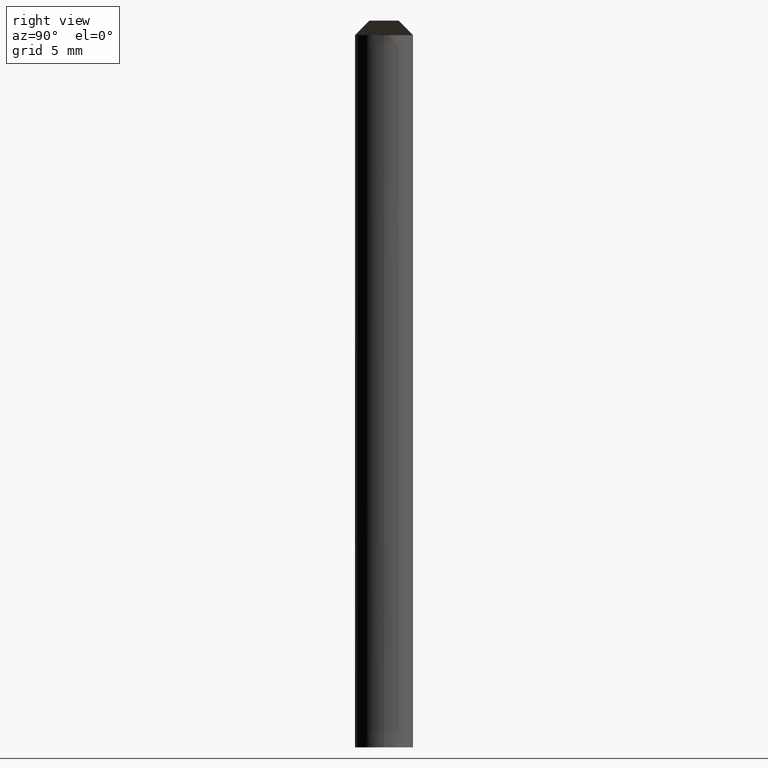
[diagram: clean part render]
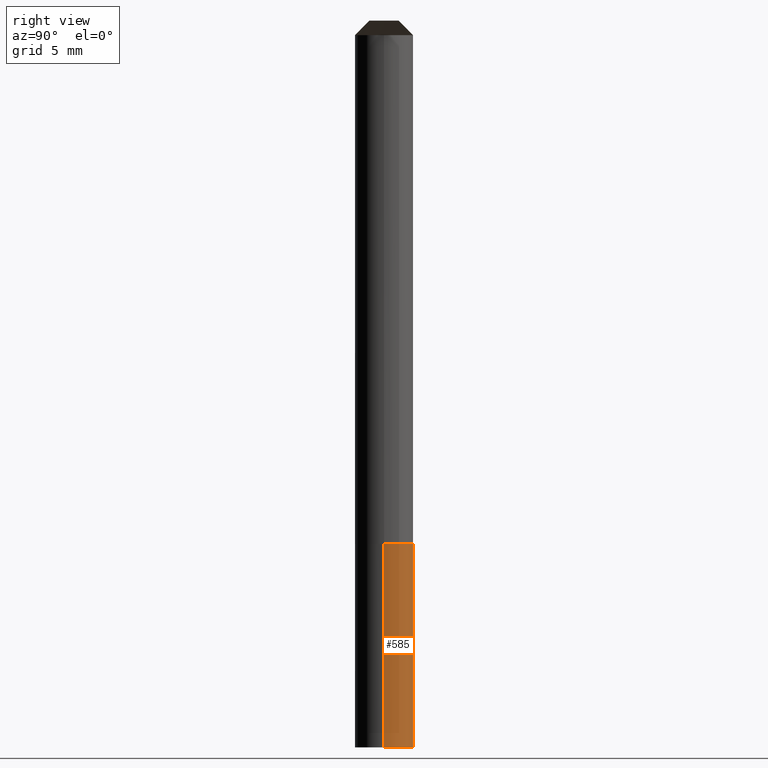
[diagram: same view with one face highlighted and labeled with its STEP entity id]
A machine part, right view. The second image highlights one B-rep face of the part: STEP entity #585.
In plain terms, the highlighted face is a freeform B-spline surface patch.
Its self-contained STEP definition (entity closure, byte-faithful):
#335=CARTESIAN_POINT('',(0.0,2.0,-14.0));
#513=CARTESIAN_POINT('',(2.0,0.0,-14.0));
#514=CARTESIAN_POINT('',(2.0,2.0,-14.0));
#515=CARTESIAN_POINT('',(-2.0,2.0,-14.0));
#516=CARTESIAN_POINT('',(-2.0,0.0,-14.0));
#517=CARTESIAN_POINT('',(2.0,0.0,0.0));
#518=CARTESIAN_POINT('',(2.0,2.0,0.0));
#519=CARTESIAN_POINT('',(0.0,2.0,0.0));
#520=CARTESIAN_POINT('',(-2.0,2.0,0.0));
#521=CARTESIAN_POINT('',(-2.0,0.0,0.0));
#566=(
BOUNDED_SURFACE()
B_SPLINE_SURFACE(1,2,(
(#513,#514,#335,#515,#516),
(#517,#518,#519,#520,#521)
), .UNSPECIFIED.,.F.,.F.,.F.)
B_SPLINE_SURFACE_WITH_KNOTS((2,2),(3,2,3),(
0.0,1.0),(
0.0,0.5,1.0), .UNSPECIFIED.)
GEOMETRIC_REPRESENTATION_ITEM()
RATIONAL_B_SPLINE_SURFACE(((1.0,0.707106781187,1.0,0.707106781187,1.0),
(1.0,0.707106781187,1.0,0.707106781187,1.0)
))
REPRESENTATION_ITEM('')
SURFACE()
);
#567=(
BOUNDED_CURVE()
B_SPLINE_CURVE(2,(#516,#515,#335,#514,#513),.UNSPECIFIED.,.F.,.F.)
B_SPLINE_CURVE_WITH_KNOTS((3,2,3),
(0.0,0.5,1.0),.UNSPECIFIED.)
CURVE()
GEOMETRIC_REPRESENTATION_ITEM()
RATIONAL_B_SPLINE_CURVE((1.0,0.707106781187,1.0,0.707106781187,1.0))
REPRESENTATION_ITEM('')
);
#568=(
BOUNDED_CURVE()
B_SPLINE_CURVE(1,(#513,#517),.UNSPECIFIED.,.F.,.F.)
B_SPLINE_CURVE_WITH_KNOTS((2,2),
(0.0,1.0),.UNSPECIFIED.)
CURVE()
GEOMETRIC_REPRESENTATION_ITEM()
RATIONAL_B_SPLINE_CURVE((1.0,1.0))
REPRESENTATION_ITEM('')
);
#569=(
BOUNDED_CURVE()
B_SPLINE_CURVE(2,(#517,#518,#519,#520,#521),.UNSPECIFIED.,.F.,.F.)
B_SPLINE_CURVE_WITH_KNOTS((3,2,3),
(0.0,0.5,1.0),.UNSPECIFIED.)
CURVE()
GEOMETRIC_REPRESENTATION_ITEM()
RATIONAL_B_SPLINE_CURVE((1.0,0.707106781187,1.0,0.707106781187,1.0))
REPRESENTATION_ITEM('')
);
#570=(
BOUNDED_CURVE()
B_SPLINE_CURVE(1,(#521,#516),.UNSPECIFIED.,.F.,.F.)
B_SPLINE_CURVE_WITH_KNOTS((2,2),
(0.0,1.0),.UNSPECIFIED.)
CURVE()
GEOMETRIC_REPRESENTATION_ITEM()
RATIONAL_B_SPLINE_CURVE((1.0,1.0))
REPRESENTATION_ITEM('')
);
#571=VERTEX_POINT('',#513);
#572=VERTEX_POINT('',#516);
#573=VERTEX_POINT('',#517);
#574=VERTEX_POINT('',#521);
#575=EDGE_CURVE('',#572,#571,#567,.T.);
#576=EDGE_CURVE('',#571,#573,#568,.T.);
#577=EDGE_CURVE('',#573,#574,#569,.T.);
#578=EDGE_CURVE('',#574,#572,#570,.T.);
#579=ORIENTED_EDGE('',*,*,#575,.T.);
#580=ORIENTED_EDGE('',*,*,#576,.T.);
#581=ORIENTED_EDGE('',*,*,#577,.T.);
#582=ORIENTED_EDGE('',*,*,#578,.T.);
#583=EDGE_LOOP('',(#579,#580,#581,#582));
#584=FACE_OUTER_BOUND('',#583,.T.);
#585=ADVANCED_FACE('',(#584),#566,.T.);